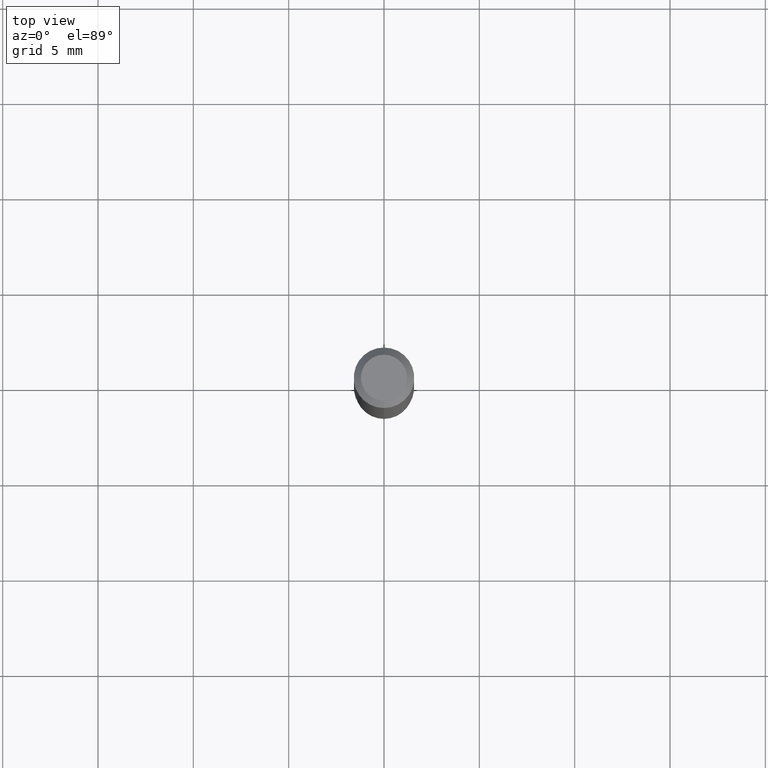
[diagram: clean part render]
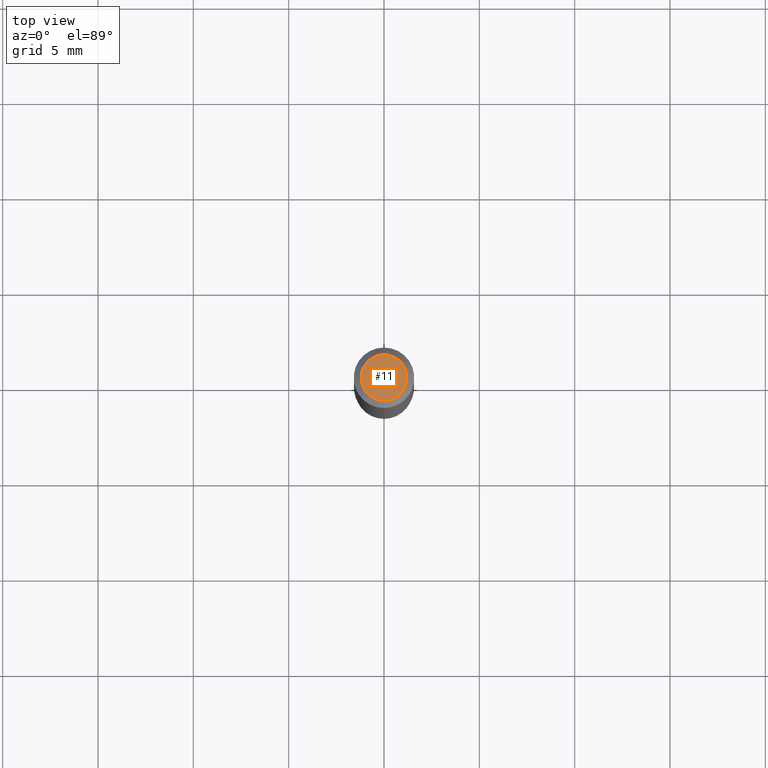
[diagram: same view with one face highlighted and labeled with its STEP entity id]
A machine part, top view. The second image highlights one B-rep face of the part: STEP entity #11.
In plain terms, the highlighted planar face has unit normal (0, -0, -1).
Its self-contained STEP definition (entity closure, byte-faithful):
#11 = ADVANCED_FACE ( 'NONE', ( #50 ), #427, .F. ) ;
#50 = FACE_OUTER_BOUND ( 'NONE', #149, .T. ) ;
#58 = CIRCLE ( 'NONE', #423, 0.04749999999999999362 ) ;
#88 = AXIS2_PLACEMENT_3D ( 'NONE', #331, #363, #246 ) ;
#104 = EDGE_CURVE ( 'NONE', #472, #383, #58, .T. ) ;
#124 = DIRECTION ( 'NONE',  ( 2.445440949719142091E-29, -3.491521230887940809E-15, -1.000000000000000000 ) ) ;
#149 = EDGE_LOOP ( 'NONE', ( #155, #316 ) ) ;
#155 = ORIENTED_EDGE ( 'NONE', *, *, #203, .T. ) ;
#166 = CARTESIAN_POINT ( 'NONE',  ( 3.840629472727447874E-16, 0.04749999999999999362, -4.939923113072091241E-16 ) ) ;
#194 = AXIS2_PLACEMENT_3D ( 'NONE', #198, #124, #195 ) ;
#195 = DIRECTION ( 'NONE',  ( 6.982962677686265922E-15, 1.000000000000000000, -3.491521230887940809E-15 ) ) ;
#198 = CARTESIAN_POINT ( 'NONE',  ( 3.316907271900976096E-16, 0.04749999999999999362, -3.299197848871931212E-16 ) ) ;
#203 = EDGE_CURVE ( 'NONE', #383, #472, #226, .T. ) ;
#208 = DIRECTION ( 'NONE',  ( -6.982962677686266711E-15, -1.000000000000000000, 3.491521230887940809E-15 ) ) ;
#226 = CIRCLE ( 'NONE', #88, 0.04749999999999999362 ) ;
#246 = DIRECTION ( 'NONE',  ( -6.982962677686266711E-15, -1.000000000000000000, 3.491521230887940809E-15 ) ) ;
#316 = ORIENTED_EDGE ( 'NONE', *, *, #104, .T. ) ;
#322 = CARTESIAN_POINT ( 'NONE',  ( 8.024593496627658608E-45, -1.145725418801816720E-30, -3.281450528400319563E-16 ) ) ;
#325 = DIRECTION ( 'NONE',  ( -2.445440949719142652E-29, 3.491521230887940809E-15, 1.000000000000000000 ) ) ;
#331 = CARTESIAN_POINT ( 'NONE',  ( 8.024593496627658608E-45, -1.145725418801816720E-30, -3.281450528400319563E-16 ) ) ;
#333 = CARTESIAN_POINT ( 'NONE',  ( -3.773273898774340269E-16, -0.04749999999999999362, -1.622977943728547640E-16 ) ) ;
#363 = DIRECTION ( 'NONE',  ( -2.445440949719142652E-29, 3.491521230887940809E-15, 1.000000000000000000 ) ) ;
#383 = VERTEX_POINT ( 'NONE', #166 ) ;
#423 = AXIS2_PLACEMENT_3D ( 'NONE', #322, #325, #208 ) ;
#427 = PLANE ( 'NONE',  #194 ) ;
#472 = VERTEX_POINT ( 'NONE', #333 ) ;